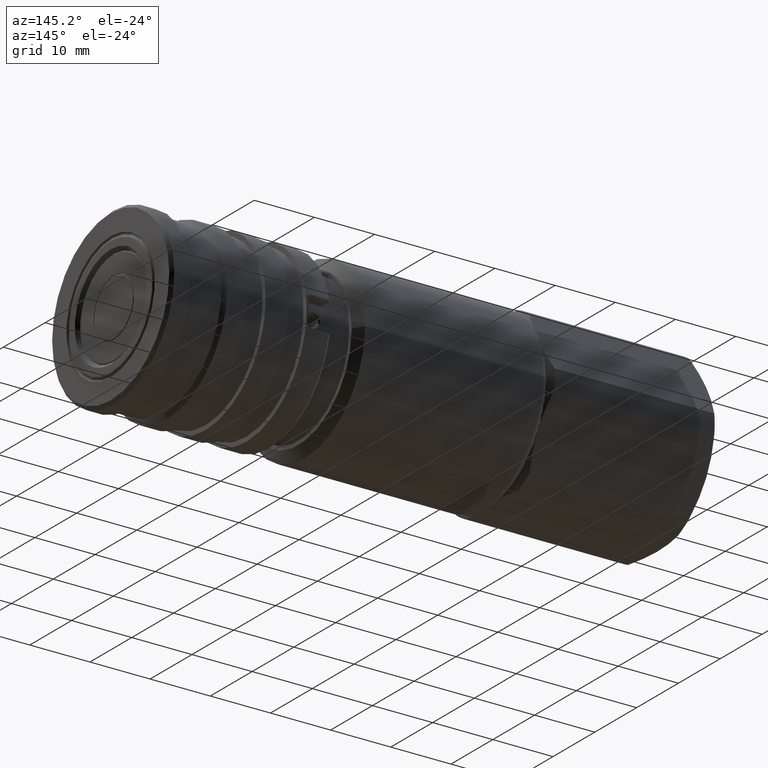
[diagram: clean part render]
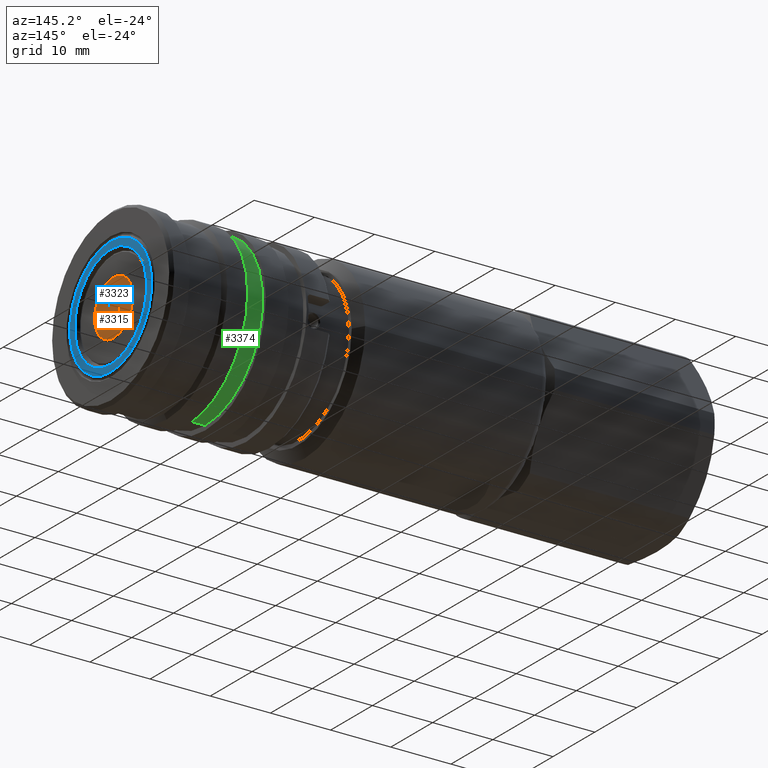
[diagram: same view with three faces highlighted in distinct colors, each labeled with its STEP entity id]
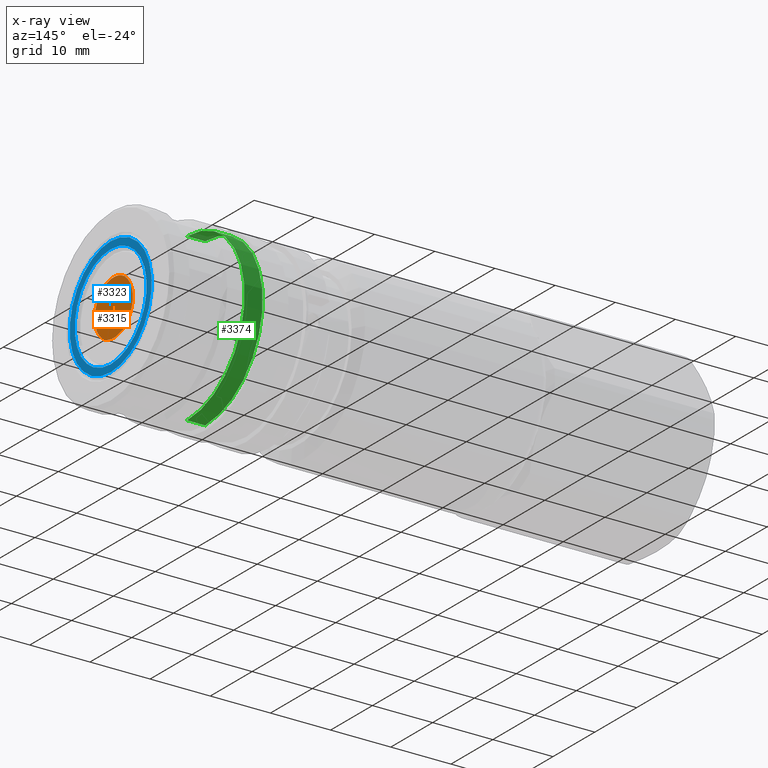
[diagram: x-ray of the same camera — body ghosted, the three highlighted faces saturated]
A machine part, auxiliary view with three faces highlighted in distinct colors.
The next image is the same camera in x-ray (body ghosted, the three faces saturated) — at least one of them is partly hidden behind the body in this view.
Their STEP definitions:

[orange] entity #3315 — the highlighted planar face has unit normal (1, 0, 0).
#60 = CARTESIAN_POINT ( 'NONE',  ( 44.69999999999999600, 4.549999999999998900, 7.299432575808467000E-016 ) ) ;
#65 = CARTESIAN_POINT ( 'NONE',  ( 44.69999999999999600, -4.549999999999998900, -1.257773498005116000E-015 ) ) ;
#95 = VERTEX_POINT ( 'NONE', #65 ) ;
#98 = VERTEX_POINT ( 'NONE', #60 ) ;
#837 = ORIENTED_EDGE ( 'NONE', *, *, #2869, .T. ) ;
#838 = ORIENTED_EDGE ( 'NONE', *, *, #2897, .T. ) ;
#1283 = CIRCLE ( 'NONE', #3117, 4.549999999999998900 ) ;
#1322 = CIRCLE ( 'NONE', #3138, 4.549999999999998900 ) ;
#1459 = AXIS2_PLACEMENT_3D ( 'NONE', #3891, #3915, #4148 ) ;
#1660 = FACE_OUTER_BOUND ( 'NONE', #2612, .T. ) ;
#2238 = DIRECTION ( 'NONE',  ( 1.000000000000000000, -6.953983969644763600E-018, 1.701730835333153700E-018 ) ) ;
#2245 = DIRECTION ( 'NONE',  ( 0.0000000000000000000, -1.000000000000000000, -2.775557561562891400E-016 ) ) ;
#2295 = CARTESIAN_POINT ( 'NONE',  ( 44.69999999999999600, -2.086195190893425500E-017, 5.105192505999451500E-018 ) ) ;
#2387 = CARTESIAN_POINT ( 'NONE',  ( 44.69999999999999600, -2.086195190893425500E-017, 5.105192505999451500E-018 ) ) ;
#2393 = DIRECTION ( 'NONE',  ( 1.000000000000000000, -6.953983969644763600E-018, 1.701730835333153700E-018 ) ) ;
#2396 = DIRECTION ( 'NONE',  ( 0.0000000000000000000, -1.000000000000000000, -2.775557561562891400E-016 ) ) ;
#2612 = EDGE_LOOP ( 'NONE', ( #837, #838 ) ) ;
#2869 = EDGE_CURVE ( 'NONE', #95, #98, #1283, .T. ) ;
#2897 = EDGE_CURVE ( 'NONE', #98, #95, #1322, .T. ) ;
#3117 = AXIS2_PLACEMENT_3D ( 'NONE', #2387, #2393, #2396 ) ;
#3138 = AXIS2_PLACEMENT_3D ( 'NONE', #2295, #2238, #2245 ) ;
#3315 = ADVANCED_FACE ( 'NONE', ( #1660 ), #4143, .T. ) ;
#3891 = CARTESIAN_POINT ( 'NONE',  ( 44.69999999999999600, -2.086195190893425500E-017, 5.105192505999451500E-018 ) ) ;
#3915 = DIRECTION ( 'NONE',  ( 1.000000000000000000, 2.079342866860461700E-017, 1.701730835333161400E-018 ) ) ;
#4143 = PLANE ( 'NONE',  #1459 ) ;
#4148 = DIRECTION ( 'NONE',  ( 2.079342866860461700E-017, -1.000000000000000000, -2.775557561562891400E-016 ) ) ;

[blue] entity #3323 — the highlighted planar face has unit normal (-1, 0, 0).
#105 = VERTEX_POINT ( 'NONE', #588 ) ;
#106 = VERTEX_POINT ( 'NONE', #586 ) ;
#109 = VERTEX_POINT ( 'NONE', #541 ) ;
#110 = VERTEX_POINT ( 'NONE', #540 ) ;
#540 = CARTESIAN_POINT ( 'NONE',  ( 45.19999999999999600, 0.0000000000000000000, 9.800000000000004300 ) ) ;
#541 = CARTESIAN_POINT ( 'NONE',  ( 45.19999999999999600, 1.224630156150382000E-015, -9.800000000000004300 ) ) ;
#586 = CARTESIAN_POINT ( 'NONE',  ( 45.19999999999999600, 1.053196247266725100E-015, 8.600000000000010300 ) ) ;
#588 = CARTESIAN_POINT ( 'NONE',  ( 45.19999999999999600, 0.0000000000000000000, -8.600000000000010300 ) ) ;
#863 = ORIENTED_EDGE ( 'NONE', *, *, #2858, .T. ) ;
#864 = ORIENTED_EDGE ( 'NONE', *, *, #2905, .T. ) ;
#865 = ORIENTED_EDGE ( 'NONE', *, *, #2906, .T. ) ;
#866 = ORIENTED_EDGE ( 'NONE', *, *, #2860, .T. ) ;
#1270 = CIRCLE ( 'NONE', #3108, 8.600000000000010300 ) ;
#1272 = CIRCLE ( 'NONE', #3110, 9.800000000000004300 ) ;
#1329 = CIRCLE ( 'NONE', #3146, 8.600000000000010300 ) ;
#1330 = CIRCLE ( 'NONE', #3147, 9.800000000000004300 ) ;
#1674 = FACE_BOUND ( 'NONE', #2475, .T. ) ;
#1675 = FACE_OUTER_BOUND ( 'NONE', #2534, .T. ) ;
#1928 = DIRECTION ( 'NONE',  ( 0.0000000000000000000, 0.0000000000000000000, 1.000000000000000000 ) ) ;
#1929 = DIRECTION ( 'NONE',  ( 0.0000000000000000000, 0.0000000000000000000, 1.000000000000000000 ) ) ;
#1930 = DIRECTION ( 'NONE',  ( -1.000000000000000000, 0.0000000000000000000, 0.0000000000000000000 ) ) ;
#1933 = CARTESIAN_POINT ( 'NONE',  ( 45.19999999999999600, 0.0000000000000000000, 0.0000000000000000000 ) ) ;
#1934 = DIRECTION ( 'NONE',  ( 1.000000000000000000, -0.0000000000000000000, -0.0000000000000000000 ) ) ;
#1935 = CARTESIAN_POINT ( 'NONE',  ( 45.19999999999999600, 0.0000000000000000000, 0.0000000000000000000 ) ) ;
#2176 = CARTESIAN_POINT ( 'NONE',  ( 45.19999999999999600, 0.0000000000000000000, 0.0000000000000000000 ) ) ;
#2256 = DIRECTION ( 'NONE',  ( 0.0000000000000000000, 0.0000000000000000000, 1.000000000000000000 ) ) ;
#2292 = DIRECTION ( 'NONE',  ( 1.000000000000000000, -0.0000000000000000000, -0.0000000000000000000 ) ) ;
#2298 = DIRECTION ( 'NONE',  ( 0.0000000000000000000, 0.0000000000000000000, 1.000000000000000000 ) ) ;
#2303 = DIRECTION ( 'NONE',  ( -1.000000000000000000, 0.0000000000000000000, 0.0000000000000000000 ) ) ;
#2304 = CARTESIAN_POINT ( 'NONE',  ( 45.19999999999999600, 0.0000000000000000000, 0.0000000000000000000 ) ) ;
#2335 = AXIS2_PLACEMENT_3D ( 'NONE', #4179, #4180, #4204 ) ;
#2475 = EDGE_LOOP ( 'NONE', ( #863, #864 ) ) ;
#2534 = EDGE_LOOP ( 'NONE', ( #865, #866 ) ) ;
#2858 = EDGE_CURVE ( 'NONE', #105, #106, #1270, .T. ) ;
#2860 = EDGE_CURVE ( 'NONE', #109, #110, #1272, .T. ) ;
#2905 = EDGE_CURVE ( 'NONE', #106, #105, #1329, .T. ) ;
#2906 = EDGE_CURVE ( 'NONE', #110, #109, #1330, .T. ) ;
#3108 = AXIS2_PLACEMENT_3D ( 'NONE', #1935, #1930, #1929 ) ;
#3110 = AXIS2_PLACEMENT_3D ( 'NONE', #1933, #1934, #1928 ) ;
#3146 = AXIS2_PLACEMENT_3D ( 'NONE', #2304, #2303, #2298 ) ;
#3147 = AXIS2_PLACEMENT_3D ( 'NONE', #2176, #2292, #2256 ) ;
#3323 = ADVANCED_FACE ( 'NONE', ( #1674, #1675 ), #4181, .F. ) ;
#4179 = CARTESIAN_POINT ( 'NONE',  ( 45.19999999999999600, 10.20000000000000500, 0.0000000000000000000 ) ) ;
#4180 = DIRECTION ( 'NONE',  ( -1.000000000000000000, 0.0000000000000000000, 0.0000000000000000000 ) ) ;
#4181 = PLANE ( 'NONE',  #2335 ) ;
#4204 = DIRECTION ( 'NONE',  ( 0.0000000000000000000, 0.0000000000000000000, 1.000000000000000000 ) ) ;

[green] entity #3374 — the highlighted cylindrical surface (partial cylindrical patch) has radius 13.75 mm, axis along (-1, -0, -0).
#142 = VERTEX_POINT ( 'NONE', #614 ) ;
#155 = VERTEX_POINT ( 'NONE', #629 ) ;
#156 = VERTEX_POINT ( 'NONE', #626 ) ;
#165 = VERTEX_POINT ( 'NONE', #635 ) ;
#374 = DIRECTION ( 'NONE',  ( 0.0000000000000000000, 0.0000000000000000000, 1.000000000000000000 ) ) ;
#375 = DIRECTION ( 'NONE',  ( -1.000000000000000000, -0.0000000000000000000, -0.0000000000000000000 ) ) ;
#506 = DIRECTION ( 'NONE',  ( -1.000000000000000000, -0.0000000000000000000, -0.0000000000000000000 ) ) ;
#507 = CARTESIAN_POINT ( 'NONE',  ( 18.39999999999999900, 6.954793946616731600E-016, -13.75000000000000000 ) ) ;
#508 = DIRECTION ( 'NONE',  ( 0.0000000000000000000, 0.0000000000000000000, 1.000000000000000000 ) ) ;
#509 = DIRECTION ( 'NONE',  ( -1.000000000000000000, -0.0000000000000000000, -0.0000000000000000000 ) ) ;
#510 = CARTESIAN_POINT ( 'NONE',  ( 32.50000000000000000, -9.884099541659373900E-016, 8.296725741381169100E-017 ) ) ;
#515 = DIRECTION ( 'NONE',  ( -1.000000000000000000, -0.0000000000000000000, -0.0000000000000000000 ) ) ;
#518 = CARTESIAN_POINT ( 'NONE',  ( 29.50000000000000000, -9.884099541659373900E-016, 8.296725741381169100E-017 ) ) ;
#539 = CARTESIAN_POINT ( 'NONE',  ( 18.39999999999999900, -9.884099541659373900E-016, 13.75000000000000000 ) ) ;
#614 = CARTESIAN_POINT ( 'NONE',  ( 32.50000000000000000, 6.954793946616731600E-016, -13.75000000000000000 ) ) ;
#626 = CARTESIAN_POINT ( 'NONE',  ( 29.50000000000000000, 6.954793946616731600E-016, -13.75000000000000000 ) ) ;
#629 = CARTESIAN_POINT ( 'NONE',  ( 32.50000000000000000, -9.884099541659373900E-016, 13.75000000000000000 ) ) ;
#635 = CARTESIAN_POINT ( 'NONE',  ( 29.50000000000000000, -9.884099541659373900E-016, 13.75000000000000000 ) ) ;
#1011 = ORIENTED_EDGE ( 'NONE', *, *, #2767, .F. ) ;
#1015 = ORIENTED_EDGE ( 'NONE', *, *, #2764, .T. ) ;
#1018 = ORIENTED_EDGE ( 'NONE', *, *, #2766, .F. ) ;
#1021 = ORIENTED_EDGE ( 'NONE', *, *, #2765, .T. ) ;
#1136 = LINE ( 'NONE', #507, #1138 ) ;
#1137 = CIRCLE ( 'NONE', #3065, 13.75000000000000000 ) ;
#1138 = VECTOR ( 'NONE', #506, 1000.000000000000000 ) ;
#1139 = LINE ( 'NONE', #539, #1141 ) ;
#1140 = CIRCLE ( 'NONE', #3066, 13.75000000000000000 ) ;
#1141 = VECTOR ( 'NONE', #515, 1000.000000000000000 ) ;
#1771 = FACE_OUTER_BOUND ( 'NONE', #2467, .T. ) ;
#1772 = CYLINDRICAL_SURFACE ( 'NONE', #3226, 13.75000000000000000 ) ;
#2467 = EDGE_LOOP ( 'NONE', ( #1015, #1021, #1018, #1011 ) ) ;
#2764 = EDGE_CURVE ( 'NONE', #155, #142, #1137, .T. ) ;
#2765 = EDGE_CURVE ( 'NONE', #142, #156, #1136, .T. ) ;
#2766 = EDGE_CURVE ( 'NONE', #165, #156, #1140, .T. ) ;
#2767 = EDGE_CURVE ( 'NONE', #155, #165, #1139, .T. ) ;
#3065 = AXIS2_PLACEMENT_3D ( 'NONE', #510, #509, #508 ) ;
#3066 = AXIS2_PLACEMENT_3D ( 'NONE', #518, #375, #374 ) ;
#3226 = AXIS2_PLACEMENT_3D ( 'NONE', #4115, #4114, #4113 ) ;
#3374 = ADVANCED_FACE ( 'NONE', ( #1771 ), #1772, .T. ) ;
#4113 = DIRECTION ( 'NONE',  ( 0.0000000000000000000, 0.0000000000000000000, 1.000000000000000000 ) ) ;
#4114 = DIRECTION ( 'NONE',  ( -1.000000000000000000, -0.0000000000000000000, -0.0000000000000000000 ) ) ;
#4115 = CARTESIAN_POINT ( 'NONE',  ( 18.39999999999999900, -9.884099541659373900E-016, 8.296725741381169100E-017 ) ) ;